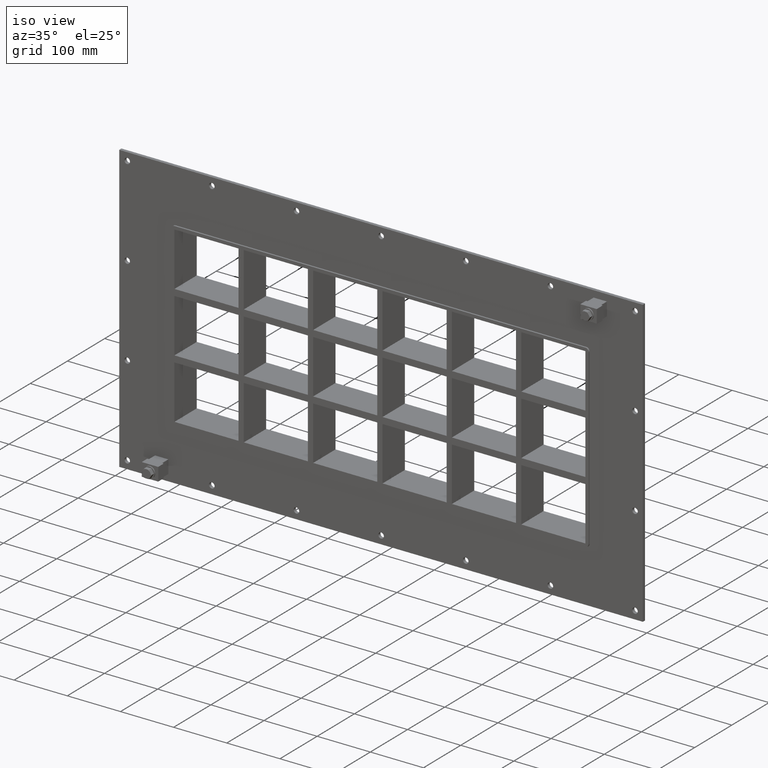
[diagram: clean part render]
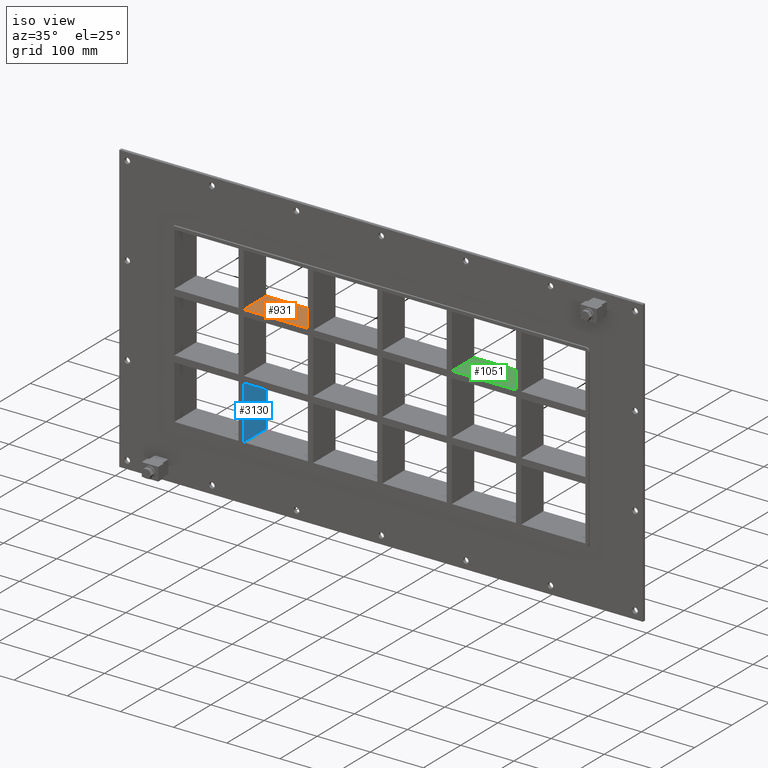
[diagram: same view with three faces highlighted in distinct colors, each labeled with its STEP entity id]
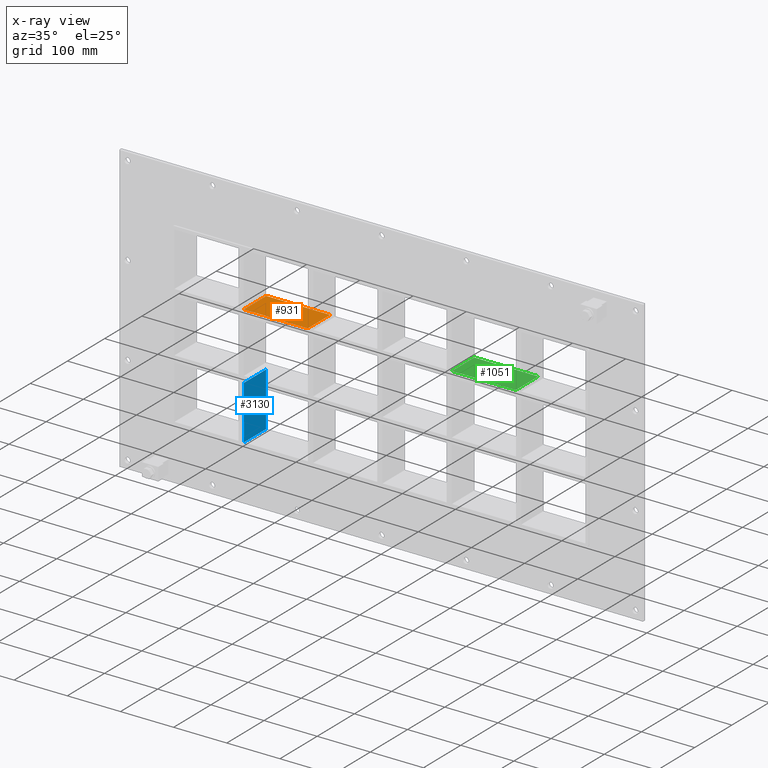
[diagram: x-ray of the same camera — body ghosted, the three highlighted faces saturated]
A machine part, iso view with three faces highlighted in distinct colors.
The next image is the same camera in x-ray (body ghosted, the three faces saturated) — at least one of them is partly hidden behind the body in this view.
Their STEP definitions:

[orange] entity #931 — the highlighted planar face has unit normal (0, 0, 1).
#892=CARTESIAN_POINT('',(-386.49999999999727,-3.0,62.500000000000462));
#893=DIRECTION('',(0.0,0.0,1.0));
#894=DIRECTION('',(1.0,0.0,0.0));
#895=AXIS2_PLACEMENT_3D('',#892,#893,#894);
#896=PLANE('',#895);
#897=CARTESIAN_POINT('',(-135.49999999999892,57.0,62.500000000000462));
#898=VERTEX_POINT('',#897);
#899=CARTESIAN_POINT('',(-135.49999999999892,-3.0,62.500000000000462));
#900=VERTEX_POINT('',#899);
#901=CARTESIAN_POINT('',(-135.49999999999889,57.0,62.500000000000462));
#902=DIRECTION('',(0.0,-1.0,0.0));
#903=VECTOR('',#902,60.0);
#904=LINE('',#901,#903);
#905=EDGE_CURVE('',#898,#900,#904,.T.);
#906=ORIENTED_EDGE('',*,*,#905,.F.);
#907=CARTESIAN_POINT('',(-256.00000000000364,57.0,62.500000000000462));
#908=VERTEX_POINT('',#907);
#909=CARTESIAN_POINT('',(-256.00000000000364,57.0,62.500000000000462));
#910=DIRECTION('',(1.0,0.0,0.0));
#911=VECTOR('',#910,120.50000000000475);
#912=LINE('',#909,#911);
#913=EDGE_CURVE('',#908,#898,#912,.T.);
#914=ORIENTED_EDGE('',*,*,#913,.F.);
#915=CARTESIAN_POINT('',(-256.00000000000364,-3.0,62.500000000000462));
#916=VERTEX_POINT('',#915);
#917=CARTESIAN_POINT('',(-256.00000000000364,-3.0,62.500000000000462));
#918=DIRECTION('',(0.0,1.0,0.0));
#919=VECTOR('',#918,60.0);
#920=LINE('',#917,#919);
#921=EDGE_CURVE('',#916,#908,#920,.T.);
#922=ORIENTED_EDGE('',*,*,#921,.F.);
#923=CARTESIAN_POINT('',(-256.00000000000364,-3.0,62.500000000000462));
#924=DIRECTION('',(1.0,0.0,0.0));
#925=VECTOR('',#924,120.50000000000475);
#926=LINE('',#923,#925);
#927=EDGE_CURVE('',#916,#900,#926,.T.);
#928=ORIENTED_EDGE('',*,*,#927,.T.);
#929=EDGE_LOOP('',(#906,#914,#922,#928));
#930=FACE_OUTER_BOUND('',#929,.T.);
#931=ADVANCED_FACE('',(#930),#896,.T.);

[blue] entity #3130 — the highlighted planar face has unit normal (1, 0, 0).
#1796=CARTESIAN_POINT('',(-256.00000000000364,57.0,-62.500000000011291));
#1797=VERTEX_POINT('',#1796);
#1804=CARTESIAN_POINT('',(-256.00000000000364,57.0,-163.4999999999819));
#1805=VERTEX_POINT('',#1804);
#1806=CARTESIAN_POINT('',(-256.00000000000364,57.0,-62.500000000011283));
#1807=DIRECTION('',(0.0,0.0,-1.0));
#1808=VECTOR('',#1807,100.99999999997061);
#1809=LINE('',#1806,#1808);
#1810=EDGE_CURVE('',#1797,#1805,#1809,.T.);
#2415=CARTESIAN_POINT('',(-256.00000000000364,-3.0,-163.49999999998187));
#2416=VERTEX_POINT('',#2415);
#2417=CARTESIAN_POINT('',(-256.00000000000358,57.000000000000007,-163.50000000000009));
#2418=DIRECTION('',(0.0,-1.0,0.0));
#2419=VECTOR('',#2418,60.000000000000007);
#2420=LINE('',#2417,#2419);
#2421=EDGE_CURVE('',#1805,#2416,#2420,.T.);
#2762=CARTESIAN_POINT('',(-256.00000000000364,-3.0,-62.500000000011291));
#2763=VERTEX_POINT('',#2762);
#2764=CARTESIAN_POINT('',(-256.00000000000364,-3.0,-62.500000000011283));
#2765=DIRECTION('',(0.0,0.0,-1.0));
#2766=VECTOR('',#2765,100.99999999997061);
#2767=LINE('',#2764,#2766);
#2768=EDGE_CURVE('',#2763,#2416,#2767,.T.);
#2856=CARTESIAN_POINT('',(-256.00000000000364,57.0,-62.500000000011298));
#2857=DIRECTION('',(0.0,-1.0,0.0));
#2858=VECTOR('',#2857,60.0);
#2859=LINE('',#2856,#2858);
#2860=EDGE_CURVE('',#1797,#2763,#2859,.T.);
#3119=CARTESIAN_POINT('',(-256.00000000000364,-3.0,163.50000000000009));
#3120=DIRECTION('',(1.0,0.0,0.0));
#3121=DIRECTION('',(0.0,0.0,-1.0));
#3122=AXIS2_PLACEMENT_3D('',#3119,#3120,#3121);
#3123=PLANE('',#3122);
#3124=ORIENTED_EDGE('',*,*,#2860,.T.);
#3125=ORIENTED_EDGE('',*,*,#2768,.T.);
#3126=ORIENTED_EDGE('',*,*,#2421,.F.);
#3127=ORIENTED_EDGE('',*,*,#1810,.F.);
#3128=EDGE_LOOP('',(#3124,#3125,#3126,#3127));
#3129=FACE_OUTER_BOUND('',#3128,.T.);
#3130=ADVANCED_FACE('',(#3129),#3123,.T.);

[green] entity #1051 — the highlighted planar face has unit normal (0, 0, 1).
#1012=CARTESIAN_POINT('',(-386.49999999999727,-3.0,62.500000000000462));
#1013=DIRECTION('',(0.0,0.0,1.0));
#1014=DIRECTION('',(1.0,0.0,0.0));
#1015=AXIS2_PLACEMENT_3D('',#1012,#1013,#1014);
#1016=PLANE('',#1015);
#1017=CARTESIAN_POINT('',(256.00000000000114,57.0,62.500000000000462));
#1018=VERTEX_POINT('',#1017);
#1019=CARTESIAN_POINT('',(256.00000000000114,-3.0,62.500000000000462));
#1020=VERTEX_POINT('',#1019);
#1021=CARTESIAN_POINT('',(256.00000000000114,57.0,62.500000000000462));
#1022=DIRECTION('',(0.0,-1.0,0.0));
#1023=VECTOR('',#1022,60.0);
#1024=LINE('',#1021,#1023);
#1025=EDGE_CURVE('',#1018,#1020,#1024,.T.);
#1026=ORIENTED_EDGE('',*,*,#1025,.F.);
#1027=CARTESIAN_POINT('',(135.49999999999642,57.0,62.500000000000462));
#1028=VERTEX_POINT('',#1027);
#1029=CARTESIAN_POINT('',(135.49999999999648,57.0,62.500000000000462));
#1030=DIRECTION('',(1.0,0.0,0.0));
#1031=VECTOR('',#1030,120.50000000000466);
#1032=LINE('',#1029,#1031);
#1033=EDGE_CURVE('',#1028,#1018,#1032,.T.);
#1034=ORIENTED_EDGE('',*,*,#1033,.F.);
#1035=CARTESIAN_POINT('',(135.49999999999642,-3.0,62.500000000000462));
#1036=VERTEX_POINT('',#1035);
#1037=CARTESIAN_POINT('',(135.49999999999642,-3.0,62.500000000000462));
#1038=DIRECTION('',(0.0,1.0,0.0));
#1039=VECTOR('',#1038,60.0);
#1040=LINE('',#1037,#1039);
#1041=EDGE_CURVE('',#1036,#1028,#1040,.T.);
#1042=ORIENTED_EDGE('',*,*,#1041,.F.);
#1043=CARTESIAN_POINT('',(135.49999999999648,-3.0,62.500000000000462));
#1044=DIRECTION('',(1.0,0.0,0.0));
#1045=VECTOR('',#1044,120.50000000000466);
#1046=LINE('',#1043,#1045);
#1047=EDGE_CURVE('',#1036,#1020,#1046,.T.);
#1048=ORIENTED_EDGE('',*,*,#1047,.T.);
#1049=EDGE_LOOP('',(#1026,#1034,#1042,#1048));
#1050=FACE_OUTER_BOUND('',#1049,.T.);
#1051=ADVANCED_FACE('',(#1050),#1016,.T.);